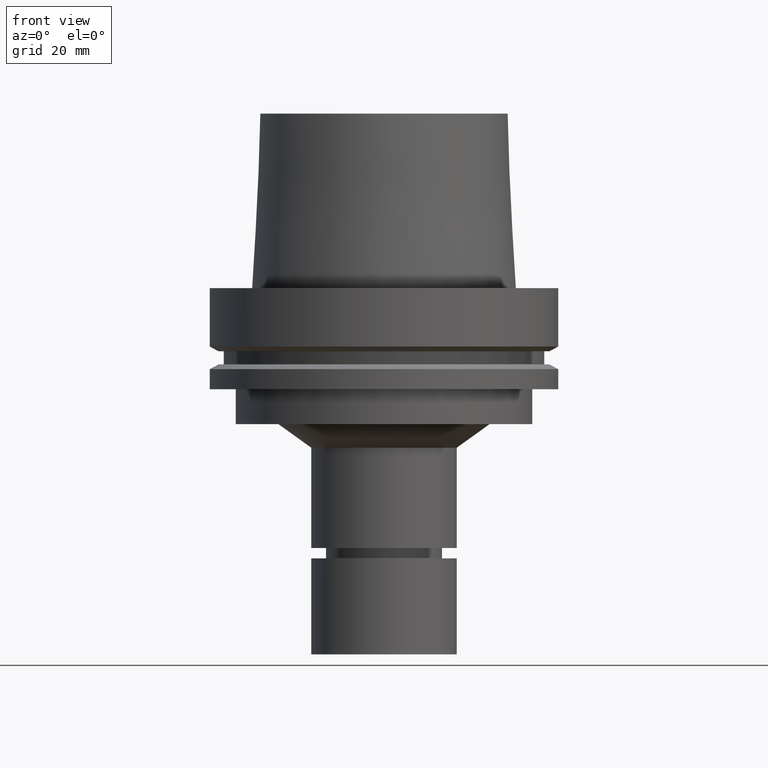
[diagram: clean part render]
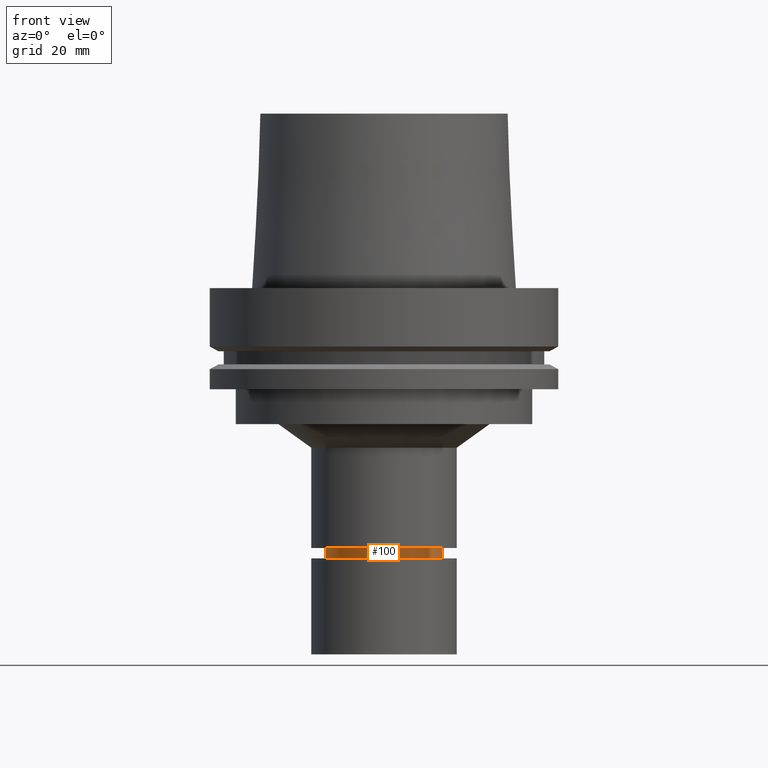
[diagram: same view with one face highlighted and labeled with its STEP entity id]
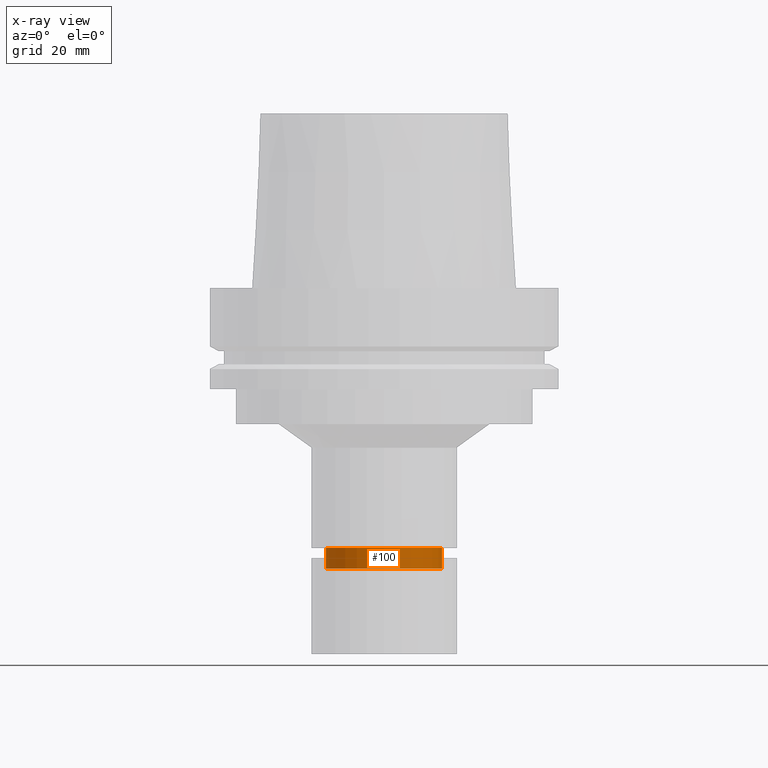
[diagram: x-ray of the same camera — body ghosted, the highlighted face saturated]
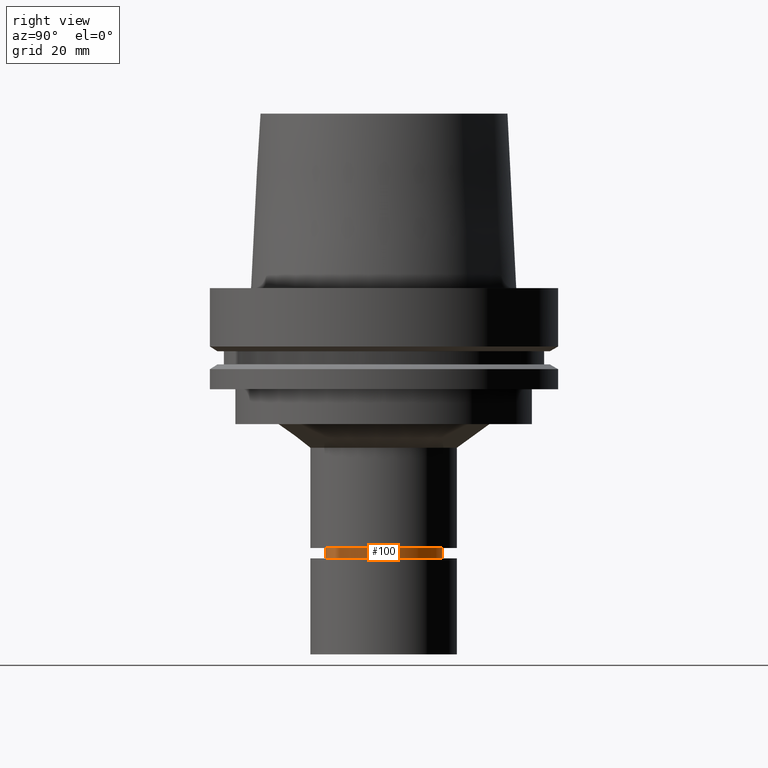
[diagram: same view with one face highlighted and labeled with its STEP entity id]
A machine part, front view. The second image highlights one B-rep face of the part: STEP entity #100.
The next image is the same camera in x-ray: the body ghosted, the highlighted face saturated — about 0% of this face is hidden behind the body in this view.
A second angle (right view) of the same face is appended — the face is thin or edge-on in the first view.
In plain terms, the highlighted cylindrical surface (bore or boss wall) has radius 16.75 mm, axis along (0, 0, -1).
Its self-contained STEP definition (entity closure, byte-faithful):
#89=EDGE_CURVE('Unnamed[1]',#235,#235,#236,.T.);
#100=ADVANCED_FACE('Unnamed[1]',(#250,#251),#252,.T.);
#191=EDGE_CURVE('Unnamed[1]',#393,#393,#394,.T.);
#235=VERTEX_POINT('',#438);
#236=CIRCLE('',#439,16.7500000000017);
#250=FACE_BOUND('',#456,.T.);
#251=FACE_BOUND('',#457,.T.);
#252=CYLINDRICAL_SURFACE('',#458,16.7499999999962);
#393=VERTEX_POINT('',#634);
#394=CIRCLE('',#635,16.7499999999907);
#438=CARTESIAN_POINT('',(4.92720259161817E-015,16.7500000000017,-80.4673248654009));
#439=AXIS2_PLACEMENT_3D('',#670,#671,#672);
#456=EDGE_LOOP('',(#684));
#457=EDGE_LOOP('',(#685));
#458=AXIS2_PLACEMENT_3D('',#686,#687,#688);
#634=CARTESIAN_POINT('',(4.56180932682384E-015,16.7499999999907,-74.4999999999992));
#635=AXIS2_PLACEMENT_3D('',#844,#845,#846);
#670=CARTESIAN_POINT('',(4.92720259161817E-015,9.85440518323635E-015,-80.4673248654009));
#671=DIRECTION('',(6.12323399573677E-017,1.22464679914735E-016,-1.0));
#672=DIRECTION('',(-1.23259516440783E-032,1.0,1.22464679914735E-016));
#684=ORIENTED_EDGE('',*,*,#89,.F.);
#685=ORIENTED_EDGE('',*,*,#191,.T.);
#686=CARTESIAN_POINT('',(4.74450595922101E-015,9.48901191844201E-015,-77.4836624327001));
#687=DIRECTION('',(6.12323399573676E-017,1.22464679914735E-016,-1.0));
#688=DIRECTION('',(-1.23259516440783E-032,1.0,1.22464679914735E-016));
#844=CARTESIAN_POINT('',(4.56180932682384E-015,9.12361865364768E-015,-74.4999999999992));
#845=DIRECTION('',(6.12323399573677E-017,1.22464679914735E-016,-1.0));
#846=DIRECTION('',(-1.23259516440783E-032,1.0,1.22464679914735E-016));